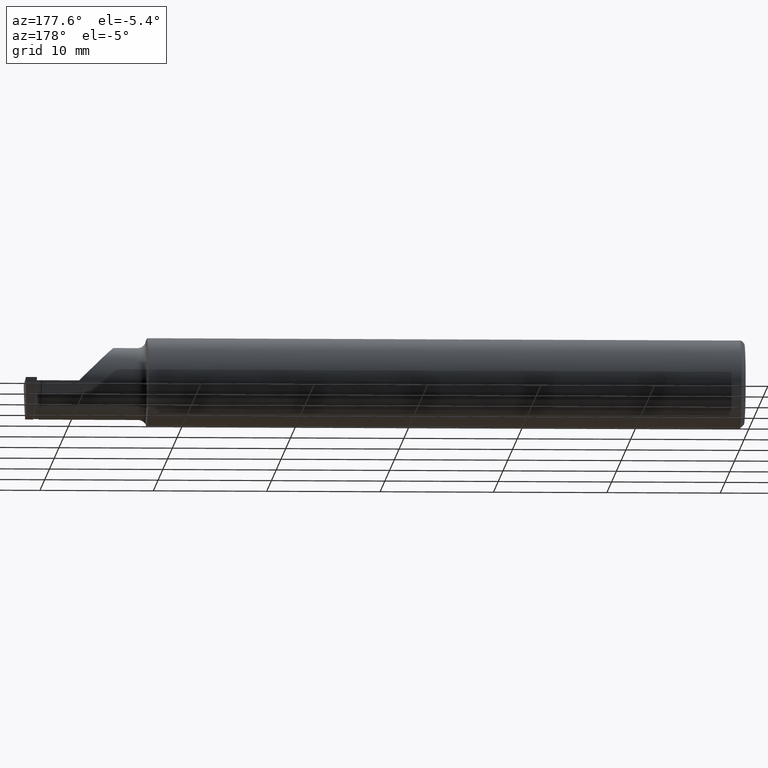
[diagram: clean part render]
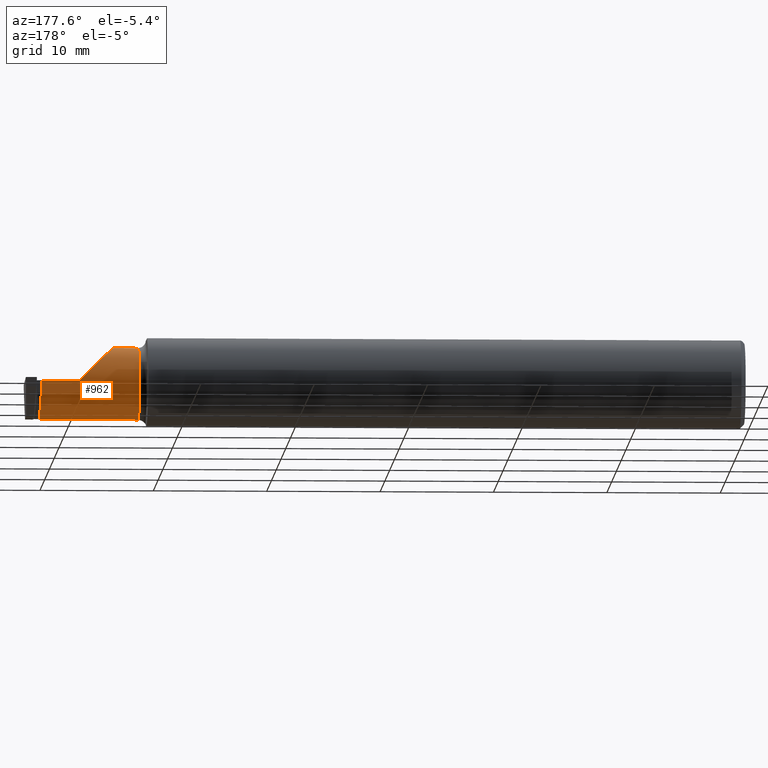
[diagram: same view with one face highlighted and labeled with its STEP entity id]
A machine part, auxiliary view. The second image highlights one B-rep face of the part: STEP entity #962.
In plain terms, the highlighted cylindrical surface (edge-blend (fillet) strip) has radius 3.175 mm, axis along (-1, -0, -0).
Its self-contained STEP definition (entity closure, byte-faithful):
#4 = DIRECTION ( 'NONE',  ( -1.000000000000000000, -0.000000000000000000, -0.000000000000000000 ) ) ;
#7 = ORIENTED_EDGE ( 'NONE', *, *, #400, .T. ) ;
#47 = B_SPLINE_CURVE_WITH_KNOTS ( 'NONE', 3,
 ( #484, #547, #740, #824, #553, #904, #975, #73, #476, #320, #636, #1075, #1069, #403, #999, #745, #650, #993 ),
 .UNSPECIFIED., .F., .F.,
 ( 4, 2, 2, 2, 2, 2, 2, 2, 4 ),
 ( 0.000000000000000000, 0.0006227411658704137647, 0.001245482331740827529, 0.001868223497611241077, 0.002490964663481655059, 0.003113705829352067956, 0.003736446995222479986, 0.004359188161092893317, 0.004981929326963306648 ),
 .UNSPECIFIED. ) ;
#68 = CIRCLE ( 'NONE', #1042, 0.1250000000000000000 ) ;
#73 = CARTESIAN_POINT ( 'NONE',  ( 2.442475355473209042, 0.01027685637267981150, -0.07626677138630481856 ) ) ;
#99 = EDGE_CURVE ( 'NONE', #316, #467, #47, .T. ) ;
#112 = CYLINDRICAL_SURFACE ( 'NONE', #506, 0.1250000000000000000 ) ;
#124 = CARTESIAN_POINT ( 'NONE',  ( 2.236776695296637474, 0.03590000000000000829, 0.07322330470336313457 ) ) ;
#147 = ORIENTED_EDGE ( 'NONE', *, *, #581, .T. ) ;
#173 = LINE ( 'NONE', #766, #844 ) ;
#194 = DIRECTION ( 'NONE',  ( 1.000000000000000000, 0.000000000000000000, 0.000000000000000000 ) ) ;
#226 = CARTESIAN_POINT ( 'NONE',  ( 2.185000000000000941, -0.01587669529663685714, 0.1250000000000000278 ) ) ;
#263 = VERTEX_POINT ( 'NONE', #337 ) ;
#265 = DIRECTION ( 'NONE',  ( -1.000000000000000000, -0.000000000000000000, -0.000000000000000000 ) ) ;
#267 = VERTEX_POINT ( 'NONE', #686 ) ;
#278 = LINE ( 'NONE', #612, #1003 ) ;
#284 = CARTESIAN_POINT ( 'NONE',  ( 2.185000000000000941, -0.08909999999999998477, 0.1250000000000000000 ) ) ;
#316 = VERTEX_POINT ( 'NONE', #668 ) ;
#320 = CARTESIAN_POINT ( 'NONE',  ( 2.443195877277316796, -0.006474744135555979795, -0.09415031118328168191 ) ) ;
#337 = CARTESIAN_POINT ( 'NONE',  ( 2.100000000000000089, -0.08909999999999998477, 0.1250000000000000000 ) ) ;
#386 = ORIENTED_EDGE ( 'NONE', *, *, #99, .T. ) ;
#400 = EDGE_CURVE ( 'NONE', #746, #316, #278, .T. ) ;
#403 = CARTESIAN_POINT ( 'NONE',  ( 2.444147791115841795, -0.04875164862914172642, -0.1185892249351804817 ) ) ;
#404 = EDGE_CURVE ( 'NONE', #263, #555, #68, .T. ) ;
#425 = CARTESIAN_POINT ( 'NONE',  ( 2.075000000000000178, -0.08909999999999995701, -0.1250000000000000000 ) ) ;
#429 = DIRECTION ( 'NONE',  ( 0.000000000000000000, 0.000000000000000000, 1.000000000000000000 ) ) ;
#467 = VERTEX_POINT ( 'NONE', #892 ) ;
#476 = CARTESIAN_POINT ( 'NONE',  ( 2.442717838188013690, 0.005034119961512959623, -0.08264370188734956879 ) ) ;
#484 = CARTESIAN_POINT ( 'NONE',  ( 2.439500000000000668, 0.03590000000000006380, 7.121324356843854204E-18 ) ) ;
#506 = AXIS2_PLACEMENT_3D ( 'NONE', #528, #265, #429 ) ;
#528 = CARTESIAN_POINT ( 'NONE',  ( 2.075000000000000178, -0.08909999999999998477, 0.000000000000000000 ) ) ;
#545 = EDGE_CURVE ( 'NONE', #267, #263, #173, .T. ) ;
#547 = CARTESIAN_POINT ( 'NONE',  ( 2.439820316791854182, 0.03589999999677379733, -0.008251322795549667979 ) ) ;
#553 = CARTESIAN_POINT ( 'NONE',  ( 2.441076701117118386, 0.02947894755971935607, -0.04037901199672798425 ) ) ;
#555 = VERTEX_POINT ( 'NONE', #665 ) ;
#557 =( BOUNDED_CURVE ( )  B_SPLINE_CURVE ( 3, ( #284, #226, #124, #799 ),
 .UNSPECIFIED., .F., .T. ) 
 B_SPLINE_CURVE_WITH_KNOTS ( ( 4, 4 ),
 ( 0.000000000000000000, 1.570796326794896558 ),
 .UNSPECIFIED. ) 
 CURVE ( )  GEOMETRIC_REPRESENTATION_ITEM ( )  RATIONAL_B_SPLINE_CURVE ( ( 1.000000000000000000, 0.8047378541243649375, 0.8047378541243649375, 1.000000000000000000 ) ) 
 REPRESENTATION_ITEM ( '' )  );
#581 = EDGE_CURVE ( 'NONE', #467, #555, #1010, .T. ) ;
#612 = CARTESIAN_POINT ( 'NONE',  ( 2.075000000000000178, 0.03590000000000001523, 5.204748896376252548E-17 ) ) ;
#636 = CARTESIAN_POINT ( 'NONE',  ( 2.443432735936789779, -0.01281923194865897467, -0.09936793618819571294 ) ) ;
#650 = CARTESIAN_POINT ( 'NONE',  ( 2.444436834922086632, -0.08088281945162062447, -0.1249999999999949207 ) ) ;
#665 = CARTESIAN_POINT ( 'NONE',  ( 2.100000000000000089, -0.08909999999999995701, -0.1250000000000000000 ) ) ;
#668 = CARTESIAN_POINT ( 'NONE',  ( 2.439500000000000668, 0.03590000000000006380, 7.121324356843854204E-18 ) ) ;
#686 = CARTESIAN_POINT ( 'NONE',  ( 2.185000000000000941, -0.08909999999999998477, 0.1250000000000000000 ) ) ;
#709 = DIRECTION ( 'NONE',  ( -1.000000000000000000, -0.000000000000000000, -0.000000000000000000 ) ) ;
#740 = CARTESIAN_POINT ( 'NONE',  ( 2.440122559936418689, 0.03509086040010602620, -0.01638619876903570083 ) ) ;
#745 = CARTESIAN_POINT ( 'NONE',  ( 2.444412895850132994, -0.07276030822906991158, -0.1241975159040745735 ) ) ;
#746 = VERTEX_POINT ( 'NONE', #852 ) ;
#748 = DIRECTION ( 'NONE',  ( -1.000000000000000000, -0.000000000000000000, -0.000000000000000000 ) ) ;
#766 = CARTESIAN_POINT ( 'NONE',  ( 2.075000000000000178, -0.08909999999999998477, 0.1250000000000000000 ) ) ;
#781 = FACE_OUTER_BOUND ( 'NONE', #1019, .T. ) ;
#799 = CARTESIAN_POINT ( 'NONE',  ( 2.310000000000000053, 0.03589999999999998748, 2.326828918379970872E-17 ) ) ;
#808 = ORIENTED_EDGE ( 'NONE', *, *, #897, .T. ) ;
#824 = CARTESIAN_POINT ( 'NONE',  ( 2.440747162570274131, 0.03189735508455680824, -0.03242710871413986146 ) ) ;
#837 = ORIENTED_EDGE ( 'NONE', *, *, #404, .F. ) ;
#844 = VECTOR ( 'NONE', #4, 39.37007874015748143 ) ;
#852 = CARTESIAN_POINT ( 'NONE',  ( 2.310000000000000053, 0.03589999999999998748, 2.326828918379970872E-17 ) ) ;
#872 = DIRECTION ( 'NONE',  ( 0.000000000000000000, 0.000000000000000000, 1.000000000000000000 ) ) ;
#892 = CARTESIAN_POINT ( 'NONE',  ( 2.444428611900506976, -0.08909999999992185282, -0.1250000000000000555 ) ) ;
#897 = EDGE_CURVE ( 'NONE', #267, #746, #557, .T. ) ;
#904 = CARTESIAN_POINT ( 'NONE',  ( 2.441698186134095394, 0.02323143009701810965, -0.05543537883483174583 ) ) ;
#950 = ORIENTED_EDGE ( 'NONE', *, *, #545, .F. ) ;
#953 = VECTOR ( 'NONE', #748, 39.37007874015748143 ) ;
#958 = CARTESIAN_POINT ( 'NONE',  ( 2.100000000000000089, -0.08909999999999998477, 0.000000000000000000 ) ) ;
#962 = ADVANCED_FACE ( 'NONE', ( #781 ), #112, .T. ) ;
#975 = CARTESIAN_POINT ( 'NONE',  ( 2.441973878009436216, 0.01939704949769464198, -0.06261605425529394309 ) ) ;
#993 = CARTESIAN_POINT ( 'NONE',  ( 2.444428611900506976, -0.08909999999992185282, -0.1250000000000000555 ) ) ;
#999 = CARTESIAN_POINT ( 'NONE',  ( 2.444257766626077633, -0.05670268150663042295, -0.1210058768752618474 ) ) ;
#1003 = VECTOR ( 'NONE', #194, 39.37007874015748143 ) ;
#1010 = LINE ( 'NONE', #425, #953 ) ;
#1019 = EDGE_LOOP ( 'NONE', ( #386, #147, #837, #950, #808, #7 ) ) ;
#1042 = AXIS2_PLACEMENT_3D ( 'NONE', #958, #709, #872 ) ;
#1069 = CARTESIAN_POINT ( 'NONE',  ( 2.443913530967688708, -0.03369782618951661091, -0.1123476429042731123 ) ) ;
#1075 = CARTESIAN_POINT ( 'NONE',  ( 2.443786525276902655, -0.02650699970421378088, -0.1085120206740964044 ) ) ;